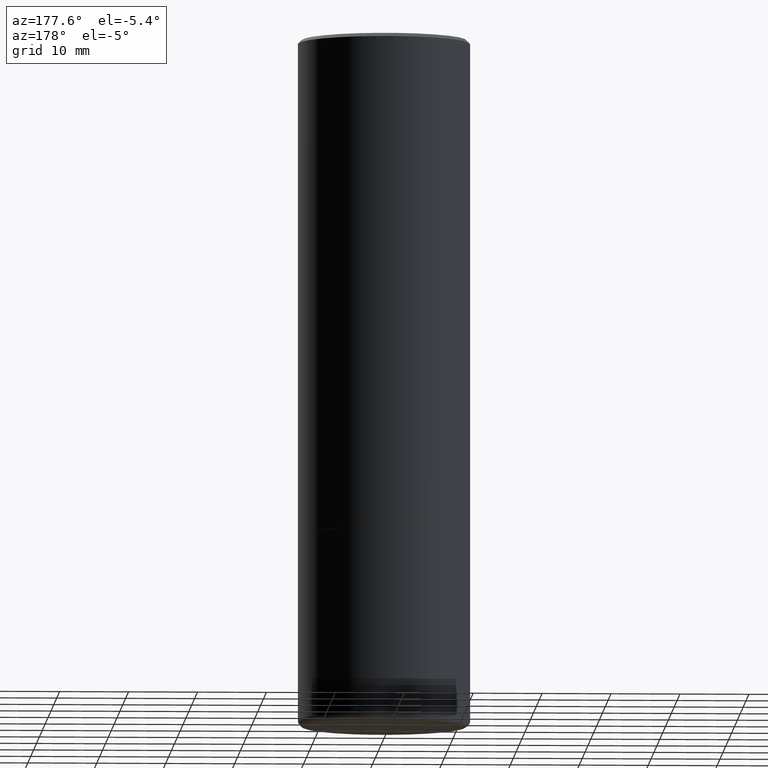
[diagram: clean part render]
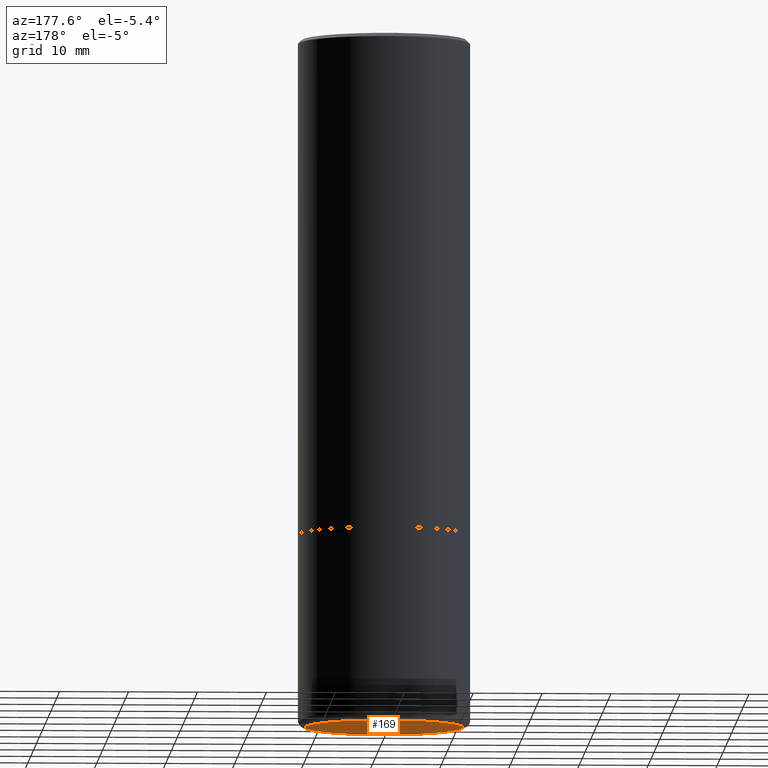
[diagram: same view with one face highlighted and labeled with its STEP entity id]
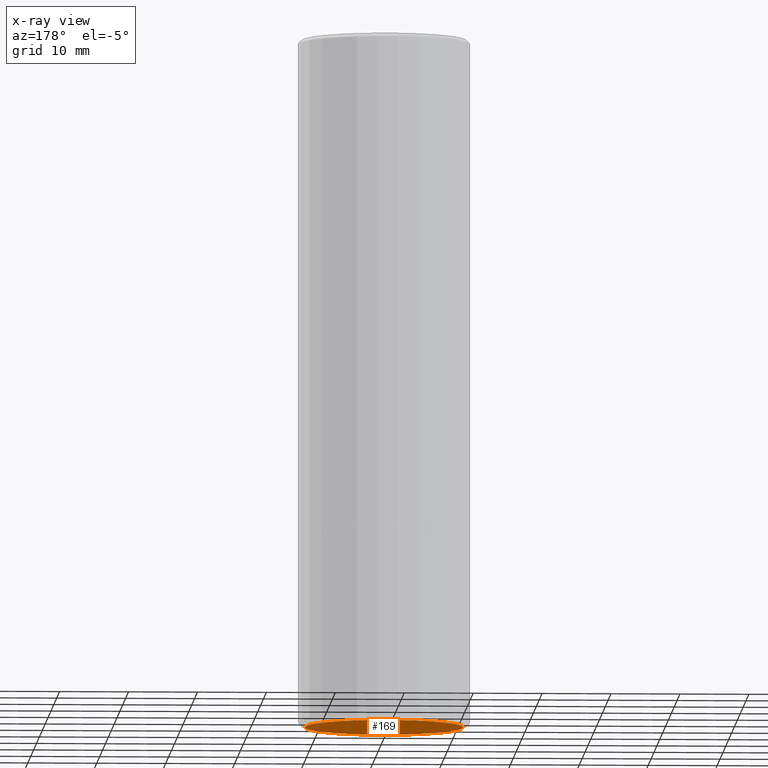
[diagram: x-ray of the same camera — body ghosted, the highlighted face saturated]
A machine part, auxiliary view. The second image highlights one B-rep face of the part: STEP entity #169.
The next image is the same camera in x-ray: the body ghosted, the highlighted face saturated — about 0% of this face is hidden behind the body in this view.
In plain terms, the highlighted planar face has unit normal (0, -0, -1).
Its self-contained STEP definition (entity closure, byte-faithful):
#19 = DIRECTION ( 'NONE',  ( 1.000000000000000000, -6.982962677686265133E-15, 0.000000000000000000 ) ) ;
#42 = AXIS2_PLACEMENT_3D ( 'NONE', #274, #275, #210 ) ;
#44 = VERTEX_POINT ( 'NONE', #228 ) ;
#50 = DIRECTION ( 'NONE',  ( -2.445468806185136597E-29, 3.491481338843145583E-15, 1.000000000000000000 ) ) ;
#78 = DIRECTION ( 'NONE',  ( -2.445468806185136597E-29, 3.491481338843145583E-15, 1.000000000000000000 ) ) ;
#112 = FACE_OUTER_BOUND ( 'NONE', #193, .T. ) ;
#121 = VERTEX_POINT ( 'NONE', #141 ) ;
#141 = CARTESIAN_POINT ( 'NONE',  ( 0.4527499999999999858, -1.690749838334791918E-14, -3.936999999999999389 ) ) ;
#169 = ADVANCED_FACE ( 'NONE', ( #112 ), #178, .T. ) ;
#178 = PLANE ( 'NONE',  #42 ) ;
#193 = EDGE_LOOP ( 'NONE', ( #278, #268 ) ) ;
#210 = DIRECTION ( 'NONE',  ( -1.000000000000000000, 6.982962677686265922E-15, -4.876176775795935793E-29 ) ) ;
#213 = DIRECTION ( 'NONE',  ( 1.000000000000000000, -6.982962677686265133E-15, 0.000000000000000000 ) ) ;
#224 = AXIS2_PLACEMENT_3D ( 'NONE', #374, #78, #213 ) ;
#228 = CARTESIAN_POINT ( 'NONE',  ( -0.4527499999999999858, -1.032022069355166022E-14, -3.936999999999999389 ) ) ;
#250 = EDGE_CURVE ( 'NONE', #121, #44, #410, .T. ) ;
#258 = EDGE_CURVE ( 'NONE', #44, #121, #398, .T. ) ;
#268 = ORIENTED_EDGE ( 'NONE', *, *, #258, .F. ) ;
#274 = CARTESIAN_POINT ( 'NONE',  ( 1.294548082096728723E-28, -8.994869573352928875E-15, -3.937000000000000277 ) ) ;
#275 = DIRECTION ( 'NONE',  ( 2.438088387897960049E-29, -3.491481338843145188E-15, -1.000000000000000000 ) ) ;
#278 = ORIENTED_EDGE ( 'NONE', *, *, #250, .F. ) ;
#279 = CARTESIAN_POINT ( 'NONE',  ( 9.627810689950881427E-29, -1.374596203102546184E-14, -3.936999999999999389 ) ) ;
#287 = AXIS2_PLACEMENT_3D ( 'NONE', #279, #50, #19 ) ;
#374 = CARTESIAN_POINT ( 'NONE',  ( 9.627810689950881427E-29, -1.374596203102546184E-14, -3.936999999999999389 ) ) ;
#398 = CIRCLE ( 'NONE', #224, 0.4527499999999999858 ) ;
#410 = CIRCLE ( 'NONE', #287, 0.4527499999999999858 ) ;